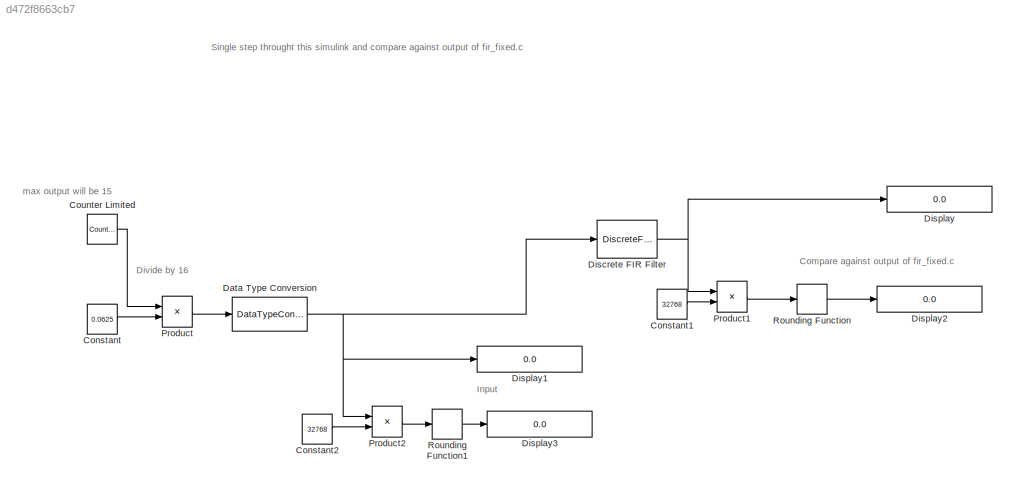
MODEL slx_d472f8663cb7
KIND model
BLOCK [Constant] Constant
  Value = 0.0625
BLOCK [Constant] Constant1
  Value = 32768
BLOCK [Constant] Constant2
  Value = 32768
BLOCK [Reference] Counter Limited  REF=simulink/Sources/Counter
Limited
  Ports = [0, 1]
  SourceBlock = simulink/Sources/Counter\nLimited
  SourceType = Counter Limited
  tsamp = 1/125E3
  uplimit = 15
BLOCK [DataTypeConversion] Data Type Conversion
  RndMeth = Nearest
  SaturateOnIntegerOverflow = off
BLOCK [DiscreteFir] Discrete FIR Filter
  Coefficients = [.04 .05 .03]
  Ports = [1, 1]
BLOCK [Display] Display
  Decimation = 1
  Ports = [1]
BLOCK [Display] Display1
  Decimation = 1
  Ports = [1]
BLOCK [Display] Display2
  Decimation = 1
  Format = long
  Ports = [1]
BLOCK [Display] Display3
  Decimation = 1
  Format = long
  Ports = [1]
BLOCK [Product] Product
  InputSameDT = off
  OutDataTypeStr = Inherit: Inherit via internal rule
  Ports = [2, 1]
  RndMeth = Floor
  SaturateOnIntegerOverflow = off
BLOCK [Product] Product1
  InputSameDT = off
  OutDataTypeStr = Inherit: Inherit via internal rule
  Ports = [2, 1]
  RndMeth = Floor
  SaturateOnIntegerOverflow = off
BLOCK [Product] Product2
  InputSameDT = off
  OutDataTypeStr = Inherit: Inherit via internal rule
  Ports = [2, 1]
  RndMeth = Floor
  SaturateOnIntegerOverflow = off
BLOCK [Rounding] Rounding Function
  Operator = round
BLOCK [Rounding] Rounding Function1
  Operator = round
ANNOTATION (root): Compare against output of fir_fixed.c
ANNOTATION (root): Divide by 16
ANNOTATION (root): Input
ANNOTATION (root): Single step throught this simulink and compare against output of fir_fixed.c
ANNOTATION (root): max output will be 15
LINE Constant1:1 -> Product1:2
LINE Constant2:1 -> Product2:2
LINE Constant:1 -> Product:2
LINE Counter Limited:1 -> Product:1
NET Data Type Conversion:1 -> Discrete FIR Filter:1, Display1:1, Product2:1
NET Discrete FIR Filter:1 -> Display:1, Product1:1
LINE Product1:1 -> Rounding Function:1
LINE Product2:1 -> Rounding Function1:1
LINE Product:1 -> Data Type Conversion:1
LINE Rounding Function1:1 -> Display3:1
LINE Rounding Function:1 -> Display2:1
note: NET lines group one-source signal fan-out (src -> all destinations, sorted); 1:1 wires keep LINE
